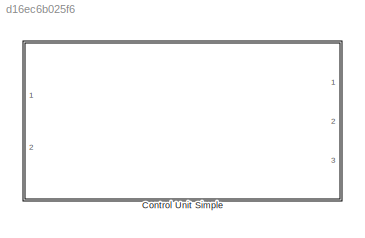
MODEL slx_d16ec6b025f6
KIND library
CONFIG AbsTol = auto
CONFIG EnableMultiTasking = off
CONFIG FixedStep = auto
CONFIG MaxStep = auto
CONFIG MinStep = auto
CONFIG RelTol = 1e-3
CONFIG SampleTimeConstraint = Unconstrained
CONFIG Solver = VariableStepAuto
CONFIG SolverName = VariableStepAuto
CONFIG StartTime = 0.0
CONFIG StopTime = 10.0
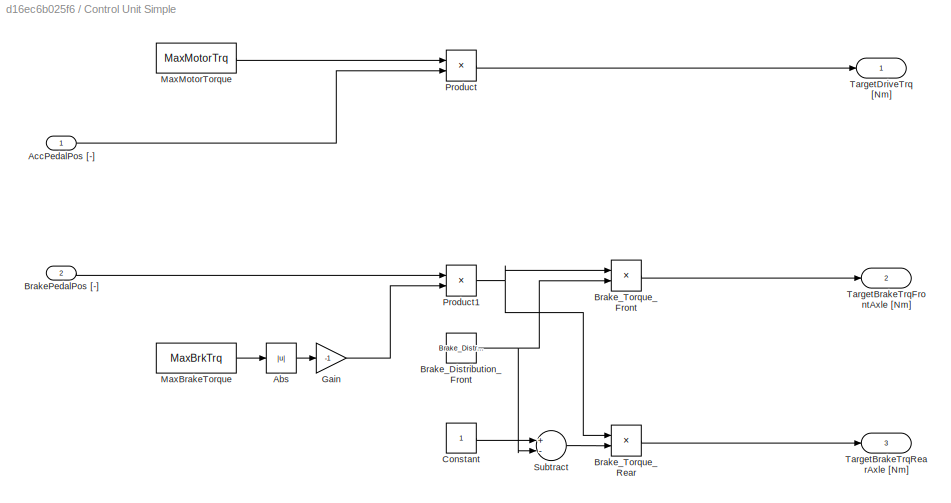
BLOCK [SubSystem] Control Unit Simple
  Ports = [2, 3]
  RequestExecContextInheritance = off
BLOCK [Abs] Control Unit Simple/Abs
  SaturateOnIntegerOverflow = off
BLOCK [Inport] Control Unit Simple/AccPedalPos [-]
  IconDisplay = Port number
  SampleTime = LocalSampleTime
BLOCK [Inport] Control Unit Simple/BrakePedalPos [-]
  IconDisplay = Port number
  Port = 2
  SampleTime = LocalSampleTime
BLOCK [Constant] Control Unit Simple/Brake_Distribution_Front
  Value = Brake_Distribution_Front
BLOCK [Product] Control Unit Simple/Brake_Torque_Front
  InputSameDT = off
  OutDataTypeStr = Inherit: Inherit via internal rule
  Ports = [2, 1]
  RndMeth = Floor
  SaturateOnIntegerOverflow = off
BLOCK [Product] Control Unit Simple/Brake_Torque_Rear
  InputSameDT = off
  OutDataTypeStr = Inherit: Inherit via internal rule
  Ports = [2, 1]
  RndMeth = Floor
  SaturateOnIntegerOverflow = off
BLOCK [Constant] Control Unit Simple/Constant
BLOCK [Gain] Control Unit Simple/Gain
  Gain = -1
  OutDataTypeStr = Inherit: Inherit via internal rule
  ParamDataTypeStr = Inherit: Inherit via internal rule
  SaturateOnIntegerOverflow = off
BLOCK [Constant] Control Unit Simple/MaxBrakeTorque
  Value = MaxBrkTrq
BLOCK [Constant] Control Unit Simple/MaxMotorTorque
  Value = MaxMotorTrq
BLOCK [Product] Control Unit Simple/Product
  InputSameDT = off
  OutDataTypeStr = Inherit: Inherit via internal rule
  Ports = [2, 1]
  RndMeth = Floor
  SaturateOnIntegerOverflow = off
BLOCK [Product] Control Unit Simple/Product1
  InputSameDT = off
  OutDataTypeStr = Inherit: Inherit via internal rule
  Ports = [2, 1]
  RndMeth = Floor
  SaturateOnIntegerOverflow = off
BLOCK [Sum] Control Unit Simple/Subtract
  InputSameDT = off
  Inputs = +-
  OutDataTypeStr = Inherit: Inherit via internal rule
  Ports = [2, 1]
  SaturateOnIntegerOverflow = off
BLOCK [Outport] Control Unit Simple/TargetBrakeTrqFrontAxle [Nm]
  IconDisplay = Port number
  Port = 2
  SampleTime = GlobalSampleTime
BLOCK [Outport] Control Unit Simple/TargetBrakeTrqRearAxle [Nm]
  IconDisplay = Port number
  Port = 3
  SampleTime = GlobalSampleTime
BLOCK [Outport] Control Unit Simple/TargetDriveTrq [Nm] 
  IconDisplay = Port number
  SampleTime = GlobalSampleTime
LINE Control Unit Simple/Abs:1 -> Control Unit Simple/Gain:1
LINE Control Unit Simple/AccPedalPos [-]:1 -> Control Unit Simple/Product:2
LINE Control Unit Simple/BrakePedalPos [-]:1 -> Control Unit Simple/Product1:1
NET Control Unit Simple/Brake_Distribution_Front:1 -> Control Unit Simple/Brake_Torque_Front:2, Control Unit Simple/Subtract:2
LINE Control Unit Simple/Brake_Torque_Front:1 -> Control Unit Simple/TargetBrakeTrqFrontAxle [Nm]:1
LINE Control Unit Simple/Brake_Torque_Rear:1 -> Control Unit Simple/TargetBrakeTrqRearAxle [Nm]:1
LINE Control Unit Simple/Constant:1 -> Control Unit Simple/Subtract:1
LINE Control Unit Simple/Gain:1 -> Control Unit Simple/Product1:2
LINE Control Unit Simple/MaxBrakeTorque:1 -> Control Unit Simple/Abs:1
LINE Control Unit Simple/MaxMotorTorque:1 -> Control Unit Simple/Product:1
NET Control Unit Simple/Product1:1 -> Control Unit Simple/Brake_Torque_Front:1, Control Unit Simple/Brake_Torque_Rear:1
LINE Control Unit Simple/Product:1 -> Control Unit Simple/TargetDriveTrq [Nm] :1
LINE Control Unit Simple/Subtract:1 -> Control Unit Simple/Brake_Torque_Rear:2
note: NET lines group one-source signal fan-out (src -> all destinations, sorted); 1:1 wires keep LINE
